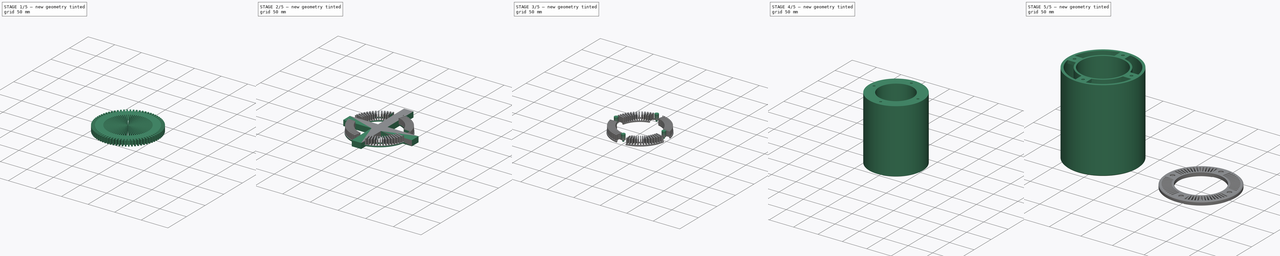
[diagram: build sequence overview — one tinted view per stage of 5, left to right]
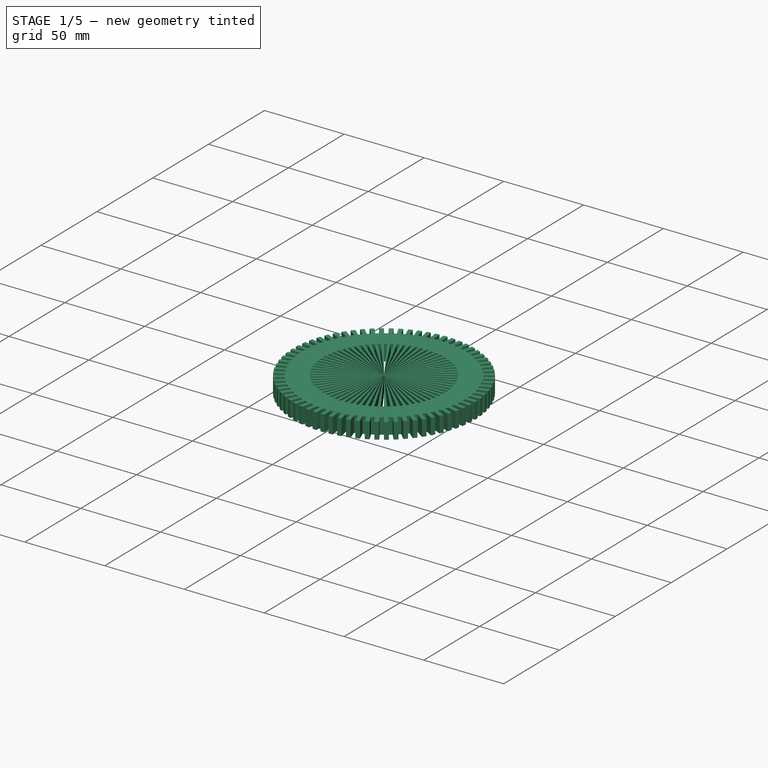
[diagram: stage 1 of 5 — iso view after this stage's code; geometry added in this stage tinted green]
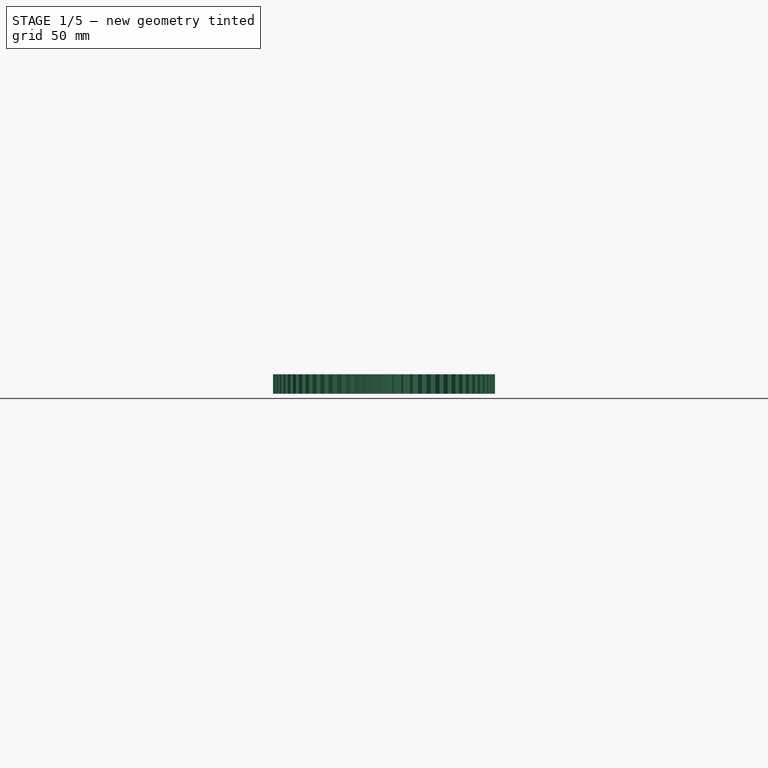
[diagram: stage 1 of 5 — front view after this stage's code; geometry added in this stage tinted green]
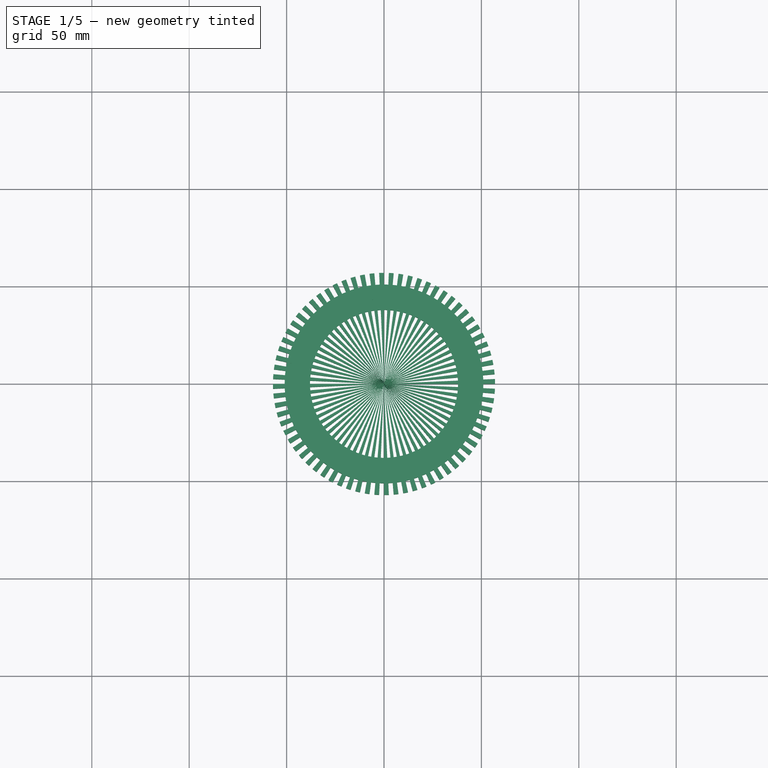
[diagram: stage 1 of 5 — top view after this stage's code; geometry added in this stage tinted green]
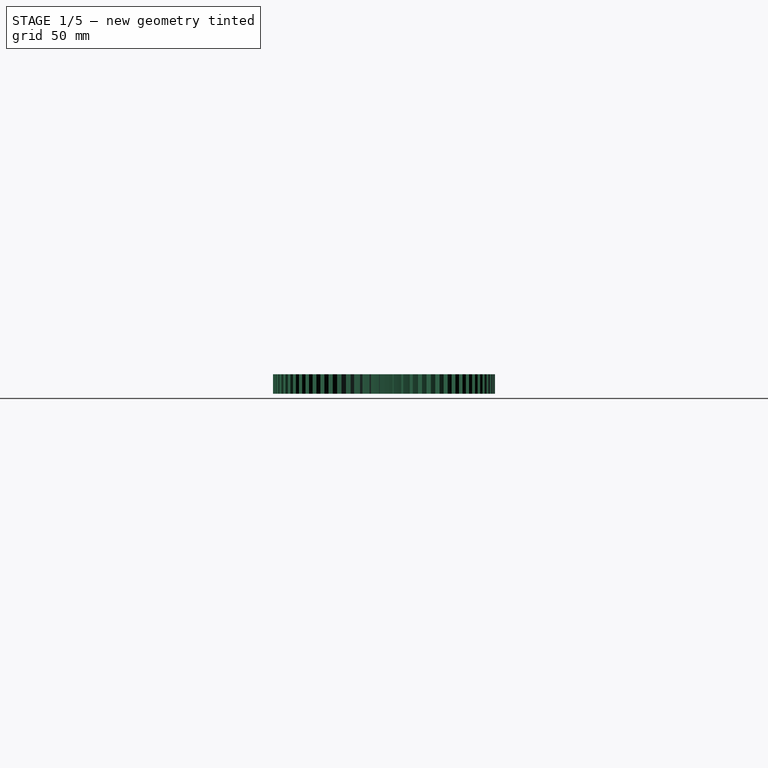
[diagram: stage 1 of 5 — right view after this stage's code; geometry added in this stage tinted green]
FCSTD DOCUMENT  (FreeCAD 0.19R24291 (Git))
Label: air-filer-extra
License: Other
LicenseURL: GPL3
objects: Part::Cylinder×24, Part::Cut×12, Part::Feature×12, Part::MultiFuse×9, Part::Box×4, Sketcher::SketchObject×3, PartDesign::Pad×2, PartDesign::Body×2, Part::Chamfer×2, PartDesign::Pocket×1, Part::MultiCommon×1
note: 75 computed .brp shape members not serialized (recipe doc carries the construction recipe); baked Part::Feature solids carry a one-line shape summary decoded from their .brp

FEATURE [Part::Cylinder] Cylinder016
  Angle = 2.5
  AttacherType = Attacher::AttachEngine3D
  Height = 10
  Radius = 57
FEATURE [Part::Cylinder] Cylinder017
  Angle = 2.5
  AttacherType = Attacher::AttachEngine3D
  Height = 10
  Placement = pos=(0,0,0) rot=(0,0,1;6.19592rad)
  Radius = 57
FEATURE [Part::Cylinder] Cylinder018
  Angle = 2.5
  AttacherType = Attacher::AttachEngine3D
  Height = 10
  Placement = pos=(0,0,0) rot=(0,0,1;6.10865rad)
  Radius = 57
FEATURE [Part::Cylinder] Cylinder019
  Angle = 2.5
  AttacherType = Attacher::AttachEngine3D
  Height = 10
  Placement = pos=(0,0,0) rot=(0,0,1;6.02139rad)
  Radius = 57
FEATURE [Part::Cylinder] Cylinder020
  Angle = 2.5
  AttacherType = Attacher::AttachEngine3D
  Height = 10
  Placement = pos=(0,0,0) rot=(0,0,1;5.93412rad)
  Radius = 57
FEATURE [Part::Cylinder] Cylinder021
  Angle = 2.5
  AttacherType = Attacher::AttachEngine3D
  Height = 10
  Placement = pos=(0,0,0) rot=(0,0,1;5.84685rad)
  Radius = 57
FEATURE [Part::MultiFuse] Fusion007
  Shapes = -> [Cylinder021,Cylinder016,Cylinder017,Cylinder018,Cylinder019,Cylinder020]
FEATURE [Part::Feature] Fusion007001
  Placement = pos=(0,0,0) rot=(0,0,1;5.75959rad)
  shape: bbox 50.56 x 46.69 x 10 mm, 30 faces, 6 solids (baked)
FEATURE [Part::Feature] Fusion007002
  Placement = pos=(0,0,0) rot=(0,0,-1;1.0472rad)
  shape: bbox 30.63 x 56.78 x 10 mm, 30 faces, 6 solids (baked)
FEATURE [Part::Feature] Fusion007003
  Placement = pos=(0,0,0) rot=(0,0,1;4.71239rad)
  shape: bbox 26.58 x 57 x 10 mm, 30 faces, 6 solids (baked)
FEATURE [Part::Feature] Fusion007004
  Placement = pos=(0,0,0) rot=(0,0,1;4.18879rad)
  shape: bbox 46.69 x 50.56 x 10 mm, 30 faces, 6 solids (baked)
FEATURE [Part::Feature] Fusion007005
  Placement = pos=(0,0,0) rot=(0,0,-1;2.61799rad)
  shape: bbox 56.78 x 30.63 x 10 mm, 30 faces, 6 solids (baked)
FEATURE [Part::Feature] Fusion007006
  Placement = pos=(0,0,0) rot=(0,0,-1;3.14159rad)
  shape: bbox 57 x 26.58 x 10 mm, 30 faces, 6 solids (baked)
FEATURE [Part::Feature] Fusion007007
  Placement = pos=(0,0,0) rot=(0,0,-1;3.66519rad)
  shape: bbox 50.56 x 46.69 x 10 mm, 30 faces, 6 solids (baked)
FEATURE [Part::Feature] Fusion007008
  Placement = pos=(0,0,0) rot=(0,0,-1;4.18879rad)
  shape: bbox 30.63 x 56.78 x 10 mm, 30 faces, 6 solids (baked)
FEATURE [Part::Feature] Fusion007009
  Placement = pos=(0,0,0) rot=(0,0,-1;4.71239rad)
  shape: bbox 26.58 x 57 x 10 mm, 30 faces, 6 solids (baked)
FEATURE [Part::Feature] Fusion007010
  Placement = pos=(0,0,0) rot=(0,0,-1;5.23599rad)
  shape: bbox 46.69 x 50.56 x 10 mm, 30 faces, 6 solids (baked)
FEATURE [Part::Feature] Fusion007011
  Placement = pos=(0,0,0) rot=(0,0,-1;5.75959rad)
  shape: bbox 56.78 x 30.63 x 10 mm, 30 faces, 6 solids (baked)
FEATURE [Part::MultiFuse] Fusion007012
  Shapes = -> [Fusion007011,Fusion007,Fusion007001,Fusion007002,Fusion007003,Fusion007004,Fusion007005,Fusion007006,Fusion007007,Fusion007008,Fusion007009,Fusion007010]
FEATURE [Part::Cylinder] Cylinder022
  Angle = 360
  AttacherType = Attacher::AttachEngine3D
  Height = 10
  Radius = 38
FEATURE [Part::Cylinder] Cylinder023
  Angle = 360
  AttacherType = Attacher::AttachEngine3D
  Height = 10
  Radius = 51
FEATURE [Part::Cut] Cut009
  Base = -> Cylinder023
  Tool = -> Cylinder022
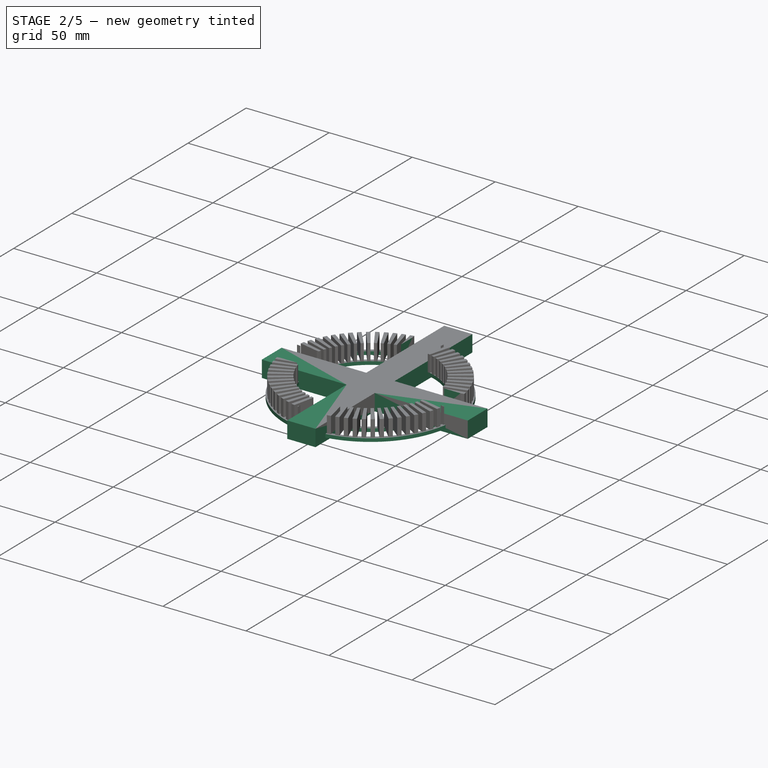
[diagram: stage 2 of 5 — iso view after this stage's code; geometry added in this stage tinted green]
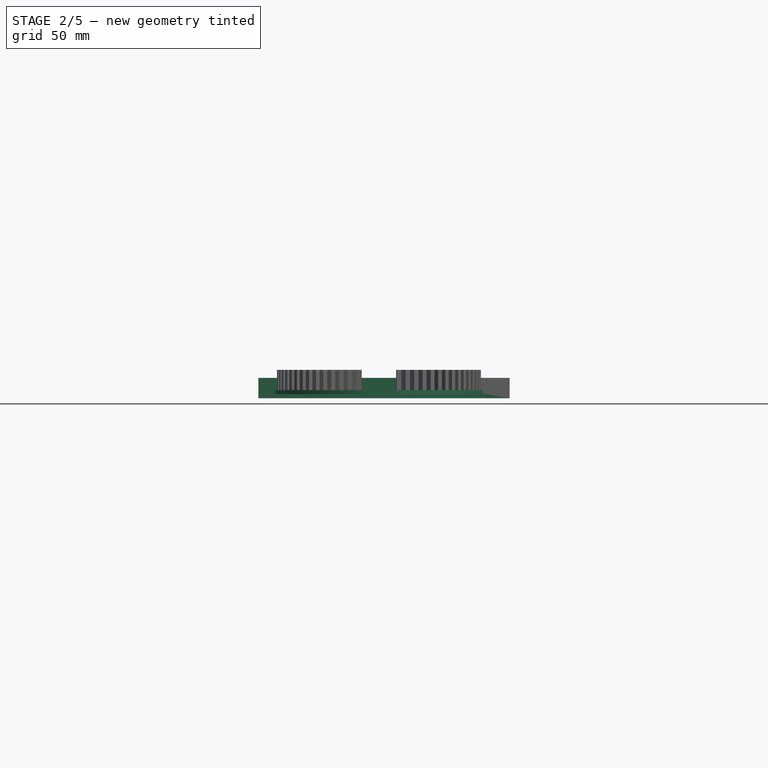
[diagram: stage 2 of 5 — front view after this stage's code; geometry added in this stage tinted green]
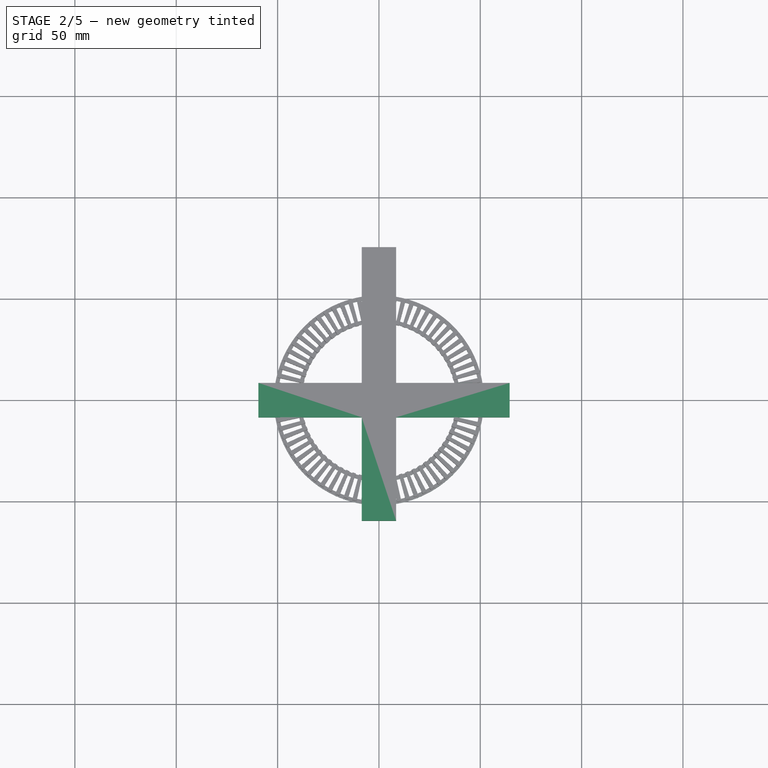
[diagram: stage 2 of 5 — top view after this stage's code; geometry added in this stage tinted green]
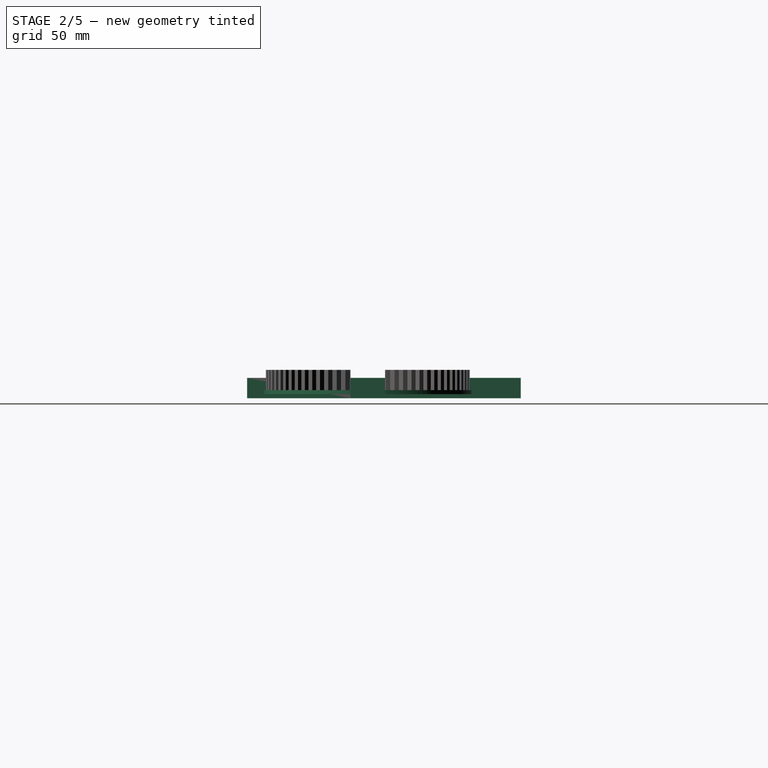
[diagram: stage 2 of 5 — right view after this stage's code; geometry added in this stage tinted green]
FEATURE [Part::Cylinder] Cylinder012
  Angle = 360
  AttacherType = Attacher::AttachEngine3D
  Height = 2
  Placement = pos=(0,0,-2) rot=(0,0,1;0rad)
  Radius = 51.8
FEATURE [Part::Cylinder] Cylinder013
  Angle = 360
  AttacherType = Attacher::AttachEngine3D
  Height = 2
  Placement = pos=(0,0,-2) rot=(0,0,1;0rad)
  Radius = 49.8
FEATURE [Part::Cut] Cut006
  Base = -> Cylinder012
  Tool = -> Cylinder013
FEATURE [Part::Cylinder] Cylinder014
  Angle = 360
  AttacherType = Attacher::AttachEngine3D
  Height = 2
  Placement = pos=(0,0,-2) rot=(0,0,1;0rad)
  Radius = 38.2
FEATURE [Part::Cylinder] Cylinder015
  Angle = 360
  AttacherType = Attacher::AttachEngine3D
  Height = 2
  Placement = pos=(0,0,-2) rot=(0,0,1;0rad)
  Radius = 40.2
FEATURE [Part::Cut] Cut007
  Base = -> Cylinder015
  Tool = -> Cylinder014
FEATURE [Part::Box] Box002  label="Cube002"
  AttacherType = Attacher::AttachEngine3D
  Height = 10
  Length = 17
  Placement = pos=(-8.5,-59.5,0) rot=(0,0,1;0rad)
  Width = 135
FEATURE [Part::Box] Box003  label="Cube003"
  AttacherType = Attacher::AttachEngine3D
  Height = 10
  Length = 124
  Placement = pos=(-59.5,-8.5,0) rot=(0,0,1;0rad)
  Width = 17
FEATURE [Part::MultiFuse] Fusion005
  Placement = pos=(0,0,-4) rot=(0,0,1;0rad)
  Shapes = -> [Box002,Box003]
FEATURE [Part::MultiCommon] Common
  Shapes = -> [Fusion007012,Cut009]
FEATURE [Part::Feature] Fusion005001
  shape: bbox 124 x 135 x 10 mm, 22 faces (baked)
FEATURE [Part::Cut] Cut010
  Base = -> Common
  Tool = -> Fusion005001
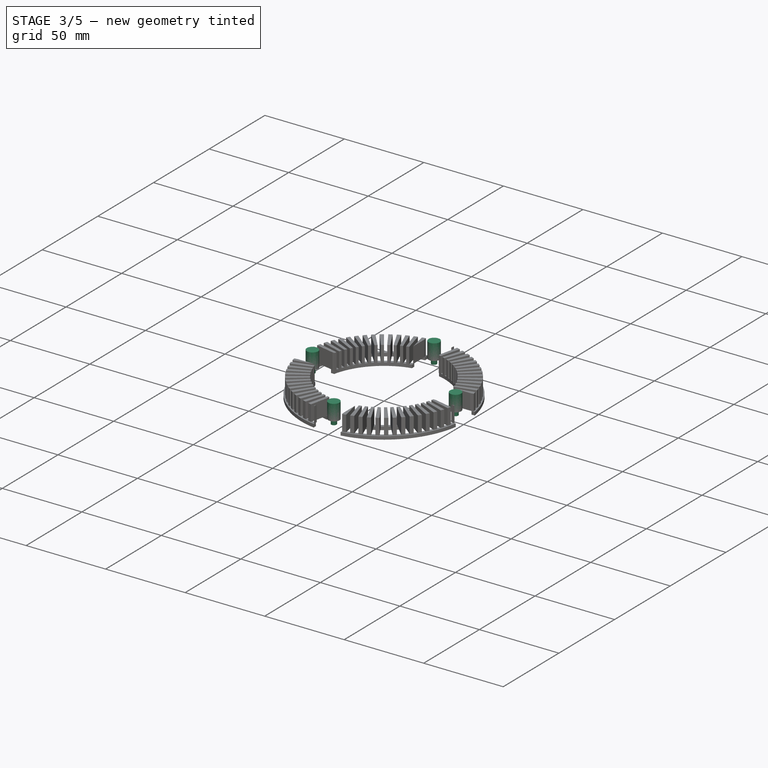
[diagram: stage 3 of 5 — iso view after this stage's code; geometry added in this stage tinted green]
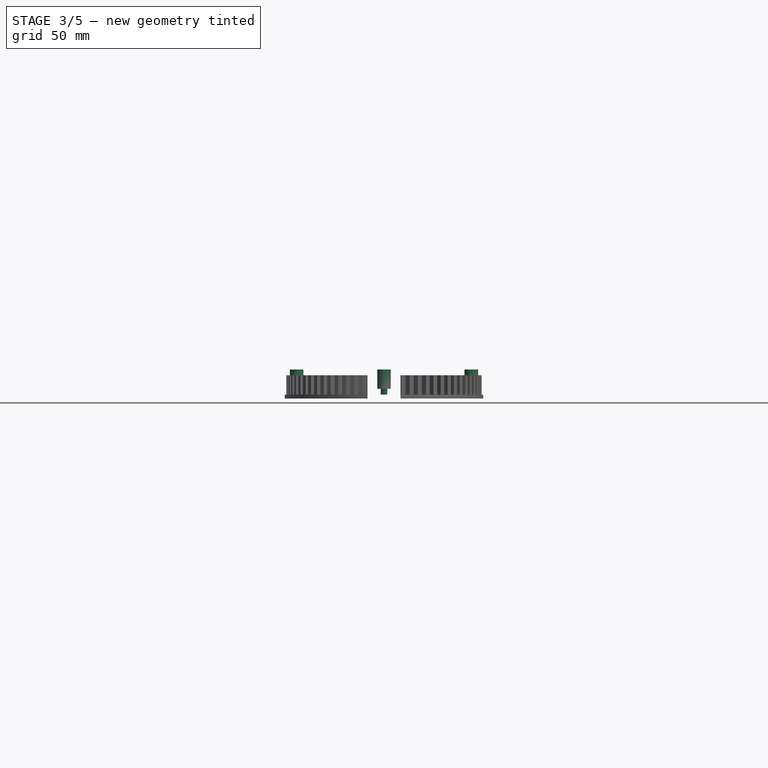
[diagram: stage 3 of 5 — front view after this stage's code; geometry added in this stage tinted green]
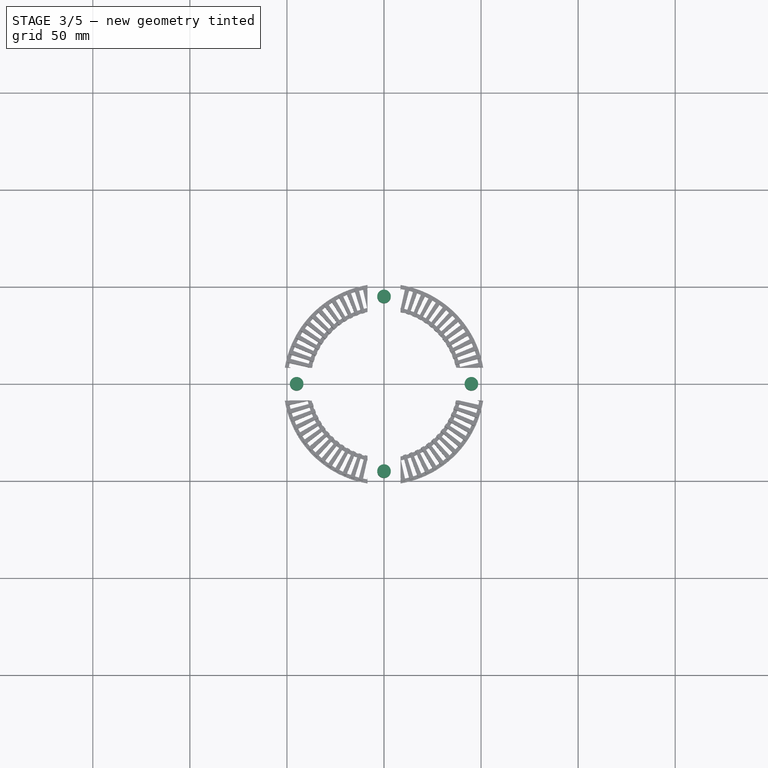
[diagram: stage 3 of 5 — top view after this stage's code; geometry added in this stage tinted green]
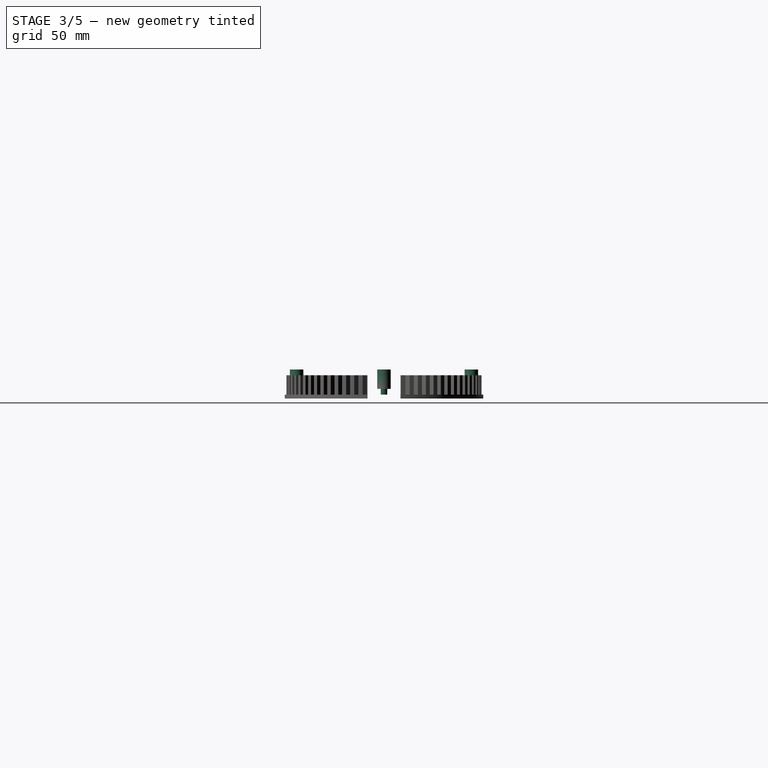
[diagram: stage 3 of 5 — right view after this stage's code; geometry added in this stage tinted green]
FEATURE [Part::Cylinder] Cylinder004
  Angle = 360
  AttacherType = Attacher::AttachEngine3D
  Height = 10
  Placement = pos=(0,45,0) rot=(0,0,1;0rad)
  Radius = 1.65
FEATURE [Part::Cylinder] Cylinder005
  Angle = 360
  AttacherType = Attacher::AttachEngine3D
  Height = 10
  Placement = pos=(0,-45,0) rot=(0,0,1;0rad)
  Radius = 1.65
FEATURE [Part::Cylinder] Cylinder006
  Angle = 360
  AttacherType = Attacher::AttachEngine3D
  Height = 10
  Placement = pos=(-45,0,0) rot=(0,0,1;0rad)
  Radius = 1.65
FEATURE [Part::Cylinder] Cylinder007
  Angle = 360
  AttacherType = Attacher::AttachEngine3D
  Height = 10
  Placement = pos=(45,0,0) rot=(0,0,1;0rad)
  Radius = 1.65
FEATURE [Part::Cylinder] Cylinder008
  Angle = 360
  AttacherType = Attacher::AttachEngine3D
  Height = 10
  Placement = pos=(45,0,0) rot=(0,0,1;0rad)
  Radius = 3.5
FEATURE [Part::Cylinder] Cylinder009
  Angle = 360
  AttacherType = Attacher::AttachEngine3D
  Height = 10
  Placement = pos=(-45,0,0) rot=(0,0,1;0rad)
  Radius = 3.5
FEATURE [Part::Cylinder] Cylinder010
  Angle = 360
  AttacherType = Attacher::AttachEngine3D
  Height = 10
  Placement = pos=(0,-45,0) rot=(0,0,1;0rad)
  Radius = 3.5
FEATURE [Part::Cylinder] Cylinder011
  Angle = 360
  AttacherType = Attacher::AttachEngine3D
  Height = 10
  Placement = pos=(0,45,0) rot=(0,0,1;0rad)
  Radius = 3.5
FEATURE [Part::MultiFuse] Fusion002
  Placement = pos=(0,0,3) rot=(0,0,1;0rad)
  Shapes = -> [Cylinder011,Cylinder008,Cylinder009,Cylinder010]
FEATURE [Part::MultiFuse] Fusion004
  Shapes = -> [Cut007,Cut006]
FEATURE [Part::Cut] Cut008
  Base = -> Fusion004
  Tool = -> Fusion005
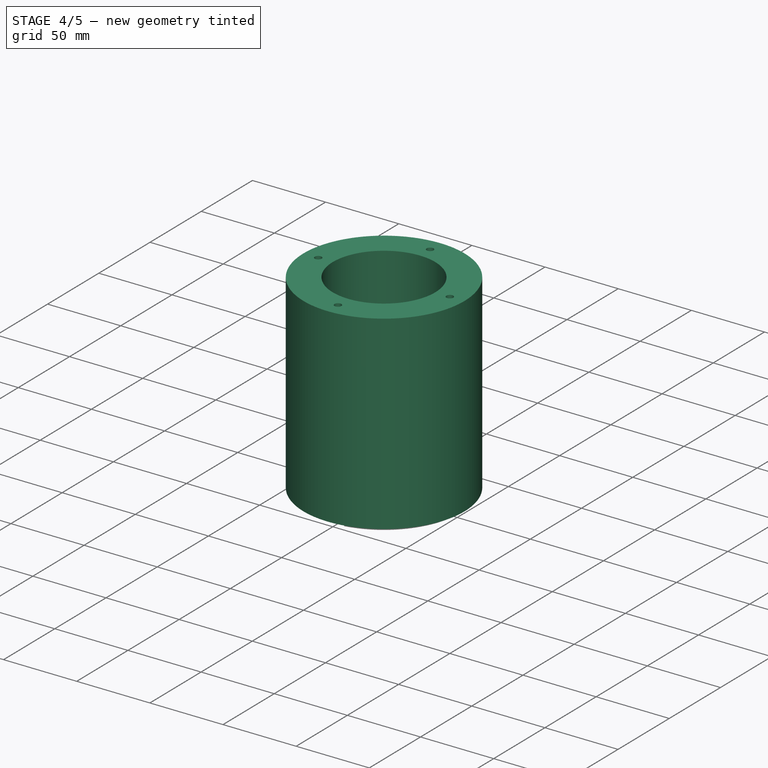
[diagram: stage 4 of 5 — iso view after this stage's code; geometry added in this stage tinted green]
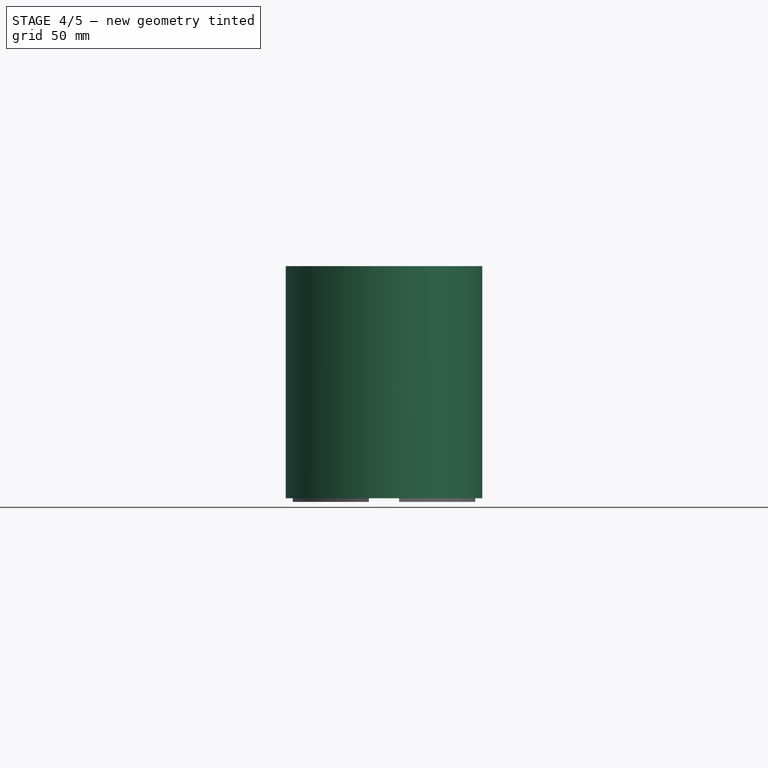
[diagram: stage 4 of 5 — front view after this stage's code; geometry added in this stage tinted green]
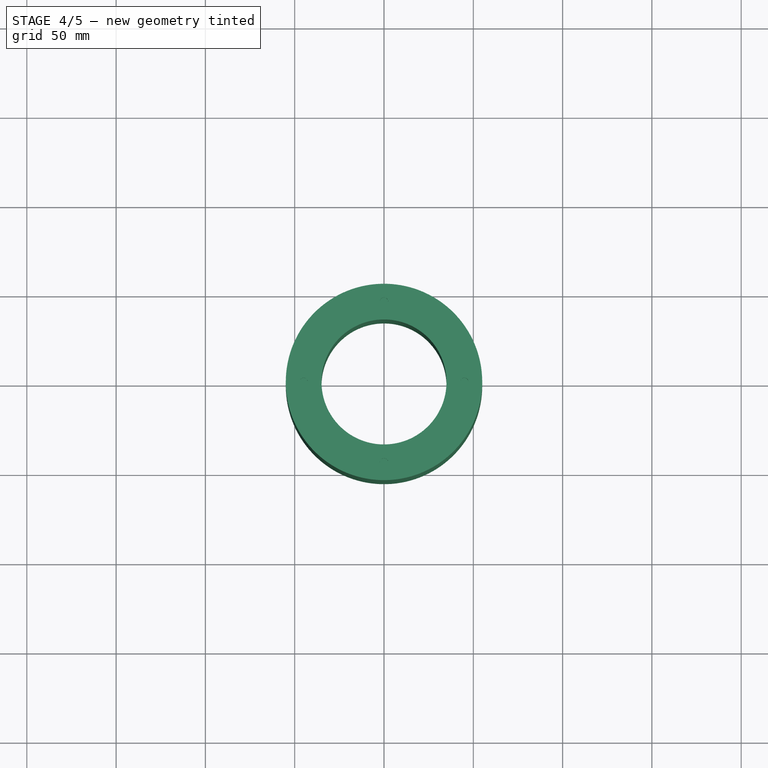
[diagram: stage 4 of 5 — top view after this stage's code; geometry added in this stage tinted green]
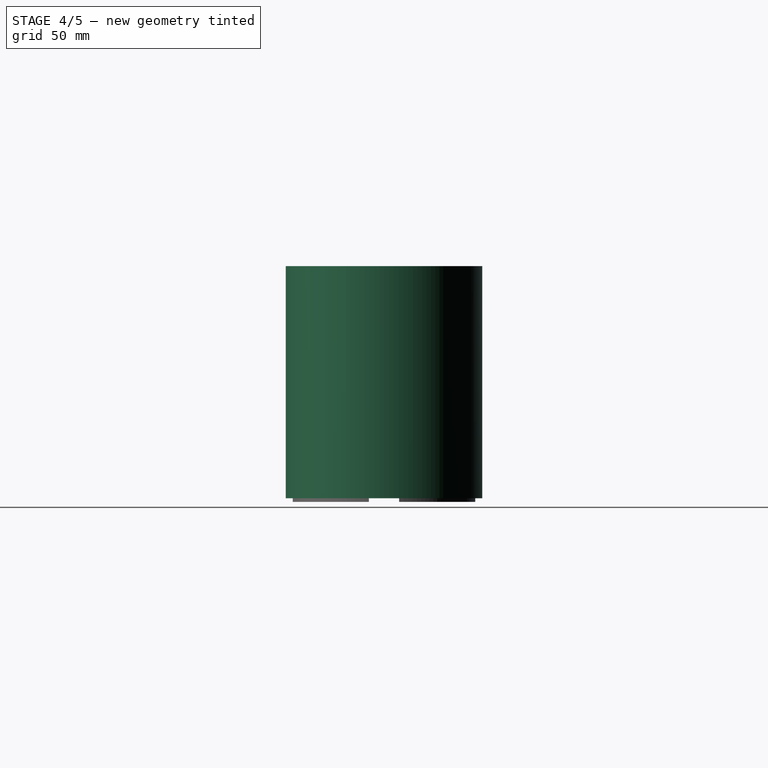
[diagram: stage 4 of 5 — right view after this stage's code; geometry added in this stage tinted green]
FEATURE [Sketcher::SketchObject] Sketch
  FullyConstrained = true
  MapMode = 5
  Support = -> [XY_Plane]
  sketch-geometry (2):
    g0: Circle CenterX=0 CenterY=0 CenterZ=0 NormalX=0 NormalY=0 NormalZ=1 AngleXU=0 Radius=55
    g1: Circle CenterX=0 CenterY=0 CenterZ=0 NormalX=0 NormalY=0 NormalZ=1 AngleXU=0 Radius=35
  constraints (4):
    c: Coincident(g0,g-1)
    c: Coincident(g1,g0)
    c: Radius(g0) = 55
    c: Radius(g1) = 35
FEATURE [PartDesign::Pad] Pad
  Direction = (1,1,1)
  Length = 130
  Length2 = 100
  Profile = -> Sketch
  Type = 0
FEATURE [PartDesign::Body] Body001
  Group = -> [Sketch001,Pad001]
  Origin = -> Origin001
  Placement = pos=(0,0,5) rot=(0,0,1;0rad)
  Tip = -> Pad001
FEATURE [Sketcher::SketchObject] Sketch002
  FullyConstrained = true
  MapMode = 5
  Placement = pos=(0,0,130) rot=(0,0,1;0rad)
  Support = -> [Pad]
  sketch-geometry (4):
    g0: Circle CenterX=-45 CenterY=0 CenterZ=0 NormalX=0 NormalY=0 NormalZ=1 AngleXU=0 Radius=2.35
    g1: Circle CenterX=45 CenterY=0 CenterZ=0 NormalX=0 NormalY=0 NormalZ=1 AngleXU=0 Radius=2.35
    g2: Circle CenterX=0 CenterY=45 CenterZ=0 NormalX=0 NormalY=0 NormalZ=1 AngleXU=0 Radius=2.35
    g3: Circle CenterX=0 CenterY=-45 CenterZ=0 NormalX=0 NormalY=0 NormalZ=1 AngleXU=0 Radius=2.35
  constraints (12):
    c: Radius(g2) = 2.35
    c: Radius(g0) = 2.35
    c: Radius(g3) = 2.35
    c: Radius(g1) = 2.35
    c: DistanceX(g2,g-1) = 0
    c: DistanceX(g3,g-1) = 0
    c: DistanceY(g-1,g0) = 0
    c: DistanceY(g-1,g1) = 0
    c: DistanceX(g0,g-1) = 45
    c: DistanceX(g-1,g1) = 45
    c: DistanceY(g3,g-1) = 45
    c: DistanceY(g-1,g2) = 45
FEATURE [PartDesign::Pocket] Pocket
  BaseFeature = -> Pad
  Length = 5
  Length2 = 100
  Profile = -> Sketch002
  Type = 0
FEATURE [Part::Cylinder] Cylinder002
  Angle = 360
  AttacherType = Attacher::AttachEngine3D
  Height = 5
  Radius = 55
FEATURE [Part::Cylinder] Cylinder003
  Angle = 360
  AttacherType = Attacher::AttachEngine3D
  Height = 5
  Radius = 35
FEATURE [Part::Cut] Cut004
  Base = -> Cylinder002
  Tool = -> Cylinder003
FEATURE [Part::MultiFuse] Fusion001
  Shapes = -> [Cylinder007,Cylinder006,Cylinder005,Cylinder004]
FEATURE [Part::MultiFuse] Fusion003
  Shapes = -> [Fusion002,Fusion001]
FEATURE [Part::Cut] Cut005
  Base = -> Cut004
  Tool = -> Fusion003
FEATURE [Part::MultiFuse] Fusion006
  Shapes = -> [Cut005,Cut008]
FEATURE [Part::Cut] Cut011
  Base = -> Fusion006
  Tool = -> Cut010
FEATURE [Part::Chamfer] Chamfer001
  Base = -> Cut011
  Edges = 1 edges r=1: [Edge1]
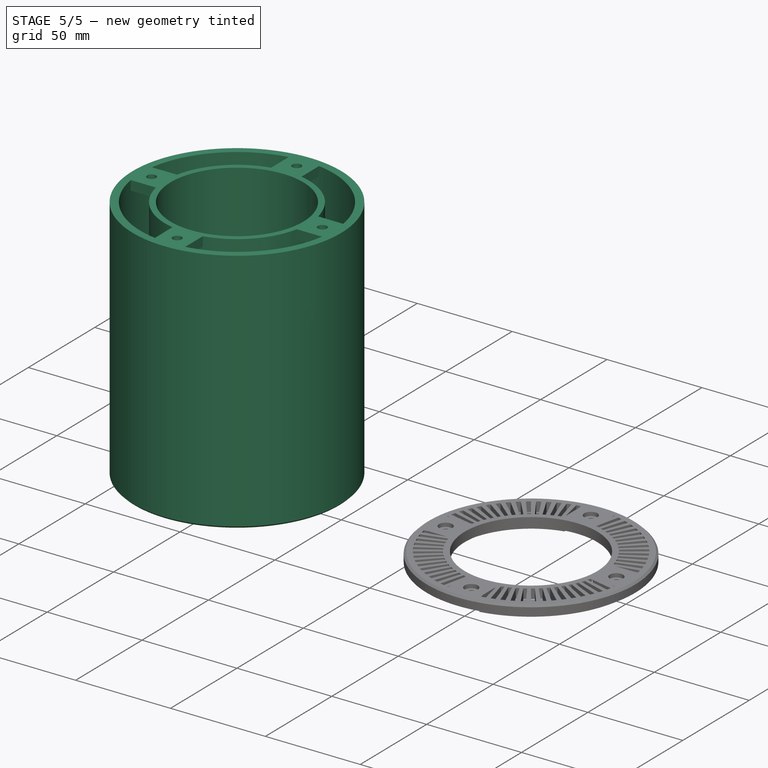
[diagram: stage 5 of 5 — iso view after this stage's code; geometry added in this stage tinted green]
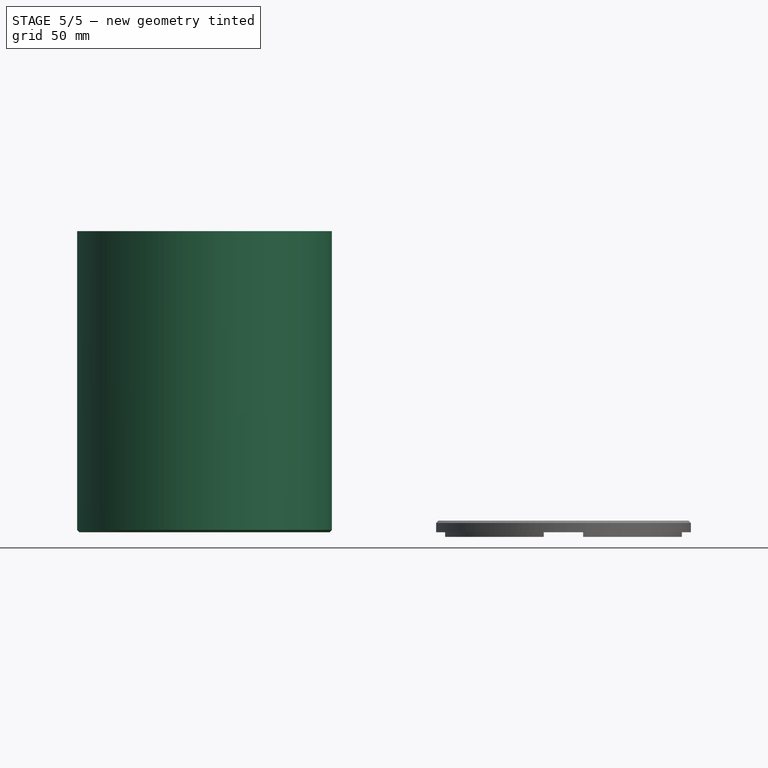
[diagram: stage 5 of 5 — front view after this stage's code; geometry added in this stage tinted green]
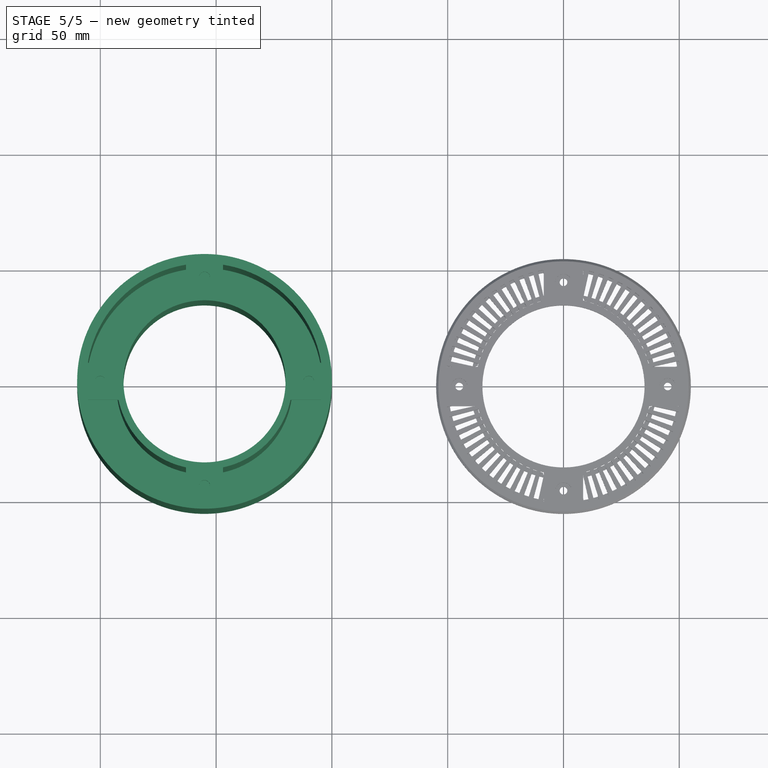
[diagram: stage 5 of 5 — top view after this stage's code; geometry added in this stage tinted green]
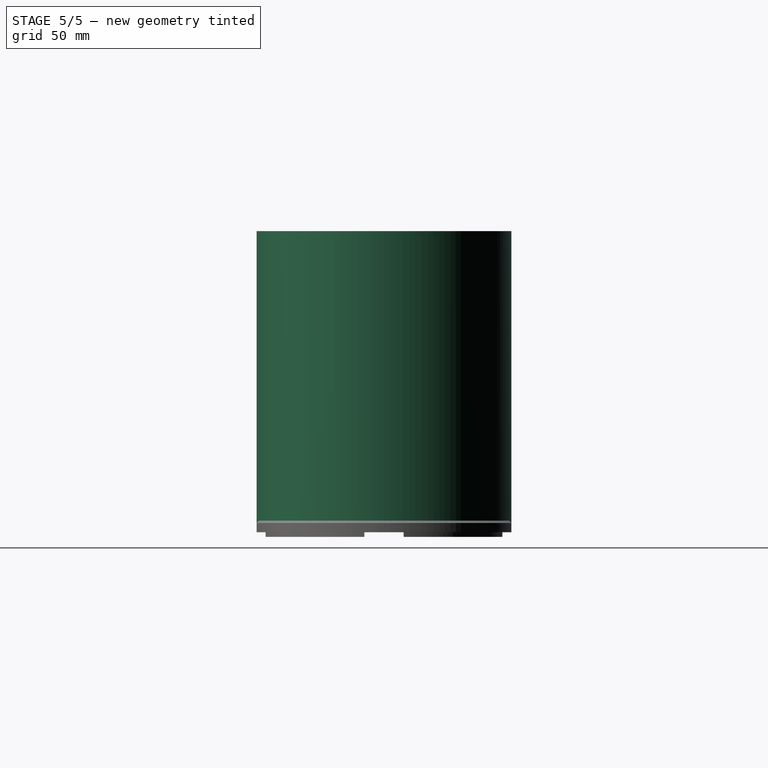
[diagram: stage 5 of 5 — right view after this stage's code; geometry added in this stage tinted green]
FEATURE [Sketcher::SketchObject] Sketch001
  FullyConstrained = true
  MapMode = 5
  Support = -> [XY_Plane001]
  sketch-geometry (2):
    g0: Circle CenterX=0 CenterY=0 CenterZ=0 NormalX=0 NormalY=0 NormalZ=1 AngleXU=0 Radius=51
    g1: Circle CenterX=0 CenterY=0 CenterZ=0 NormalX=0 NormalY=0 NormalZ=1 AngleXU=0 Radius=38
  constraints (4):
    c: Coincident(g0,g-1)
    c: Coincident(g1,g0)
    c: Radius(g0) = 51
    c: Radius(g1) = 38
FEATURE [PartDesign::Pad] Pad001
  Direction = (1,1,1)
  Length = 120
  Length2 = 100
  Profile = -> Sketch001
  Type = 0
FEATURE [PartDesign::Body] Body
  Group = -> [Sketch,Pad,Sketch002,Pocket]
  Origin = -> Origin
  Tip = -> Pocket
FEATURE [Part::Cylinder] Cylinder
  Angle = 360
  AttacherType = Attacher::AttachEngine3D
  Height = 10
  Radius = 51
FEATURE [Part::Cylinder] Cylinder001
  Angle = 360
  AttacherType = Attacher::AttachEngine3D
  Height = 10
  Radius = 38
FEATURE [Part::Cut] Cut001
  Base = -> Cylinder
  Tool = -> Cylinder001
FEATURE [Part::Box] Box  label="Cube"
  AttacherType = Attacher::AttachEngine3D
  Height = 10
  Length = 16
  Placement = pos=(-8,-56,0) rot=(0,0,1;0rad)
  Width = 108
FEATURE [Part::Box] Box001  label="Cube001"
  AttacherType = Attacher::AttachEngine3D
  Height = 10
  Length = 128
  Placement = pos=(-56,-8,0) rot=(0,0,1;0rad)
  Width = 16
FEATURE [Part::MultiFuse] Fusion
  Shapes = -> [Box001,Box]
FEATURE [Part::Cut] Cut002
  Base = -> Cut001
  Placement = pos=(0,0,123) rot=(0,0,1;0rad)
  Tool = -> Fusion
FEATURE [Part::Cut] Cut
  Base = -> Body
  Tool = -> Body001
FEATURE [Part::Cut] Cut003
  Base = -> Cut
  Placement = pos=(-155,0,0) rot=(0,0,1;0rad)
  Tool = -> Cut002
FEATURE [Part::Chamfer] Chamfer
  Base = -> Cut003
  Edges = 2 edges r=1: [Edge2,Edge4]
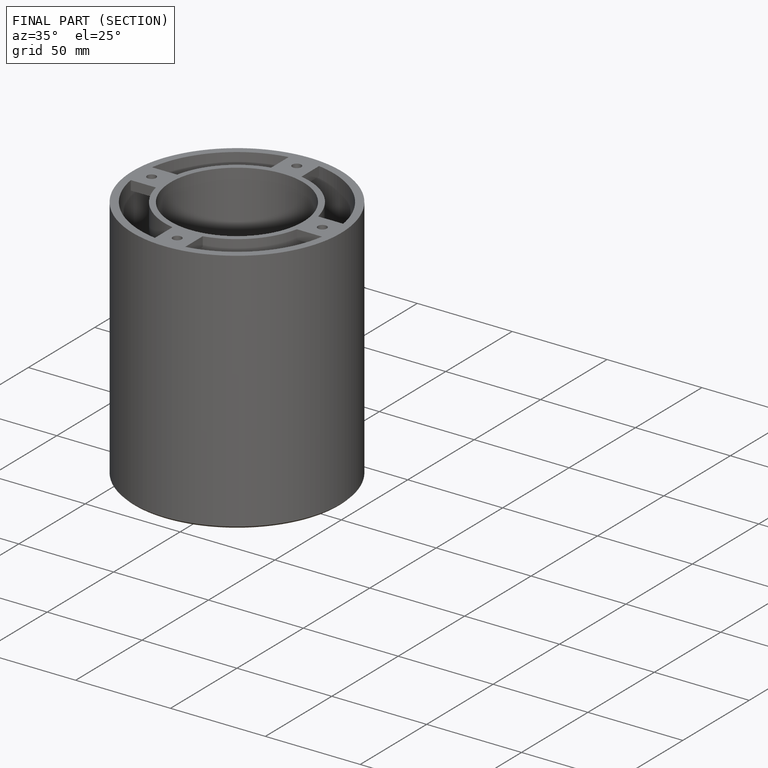
[diagram: finished part — half-section view (interior)]
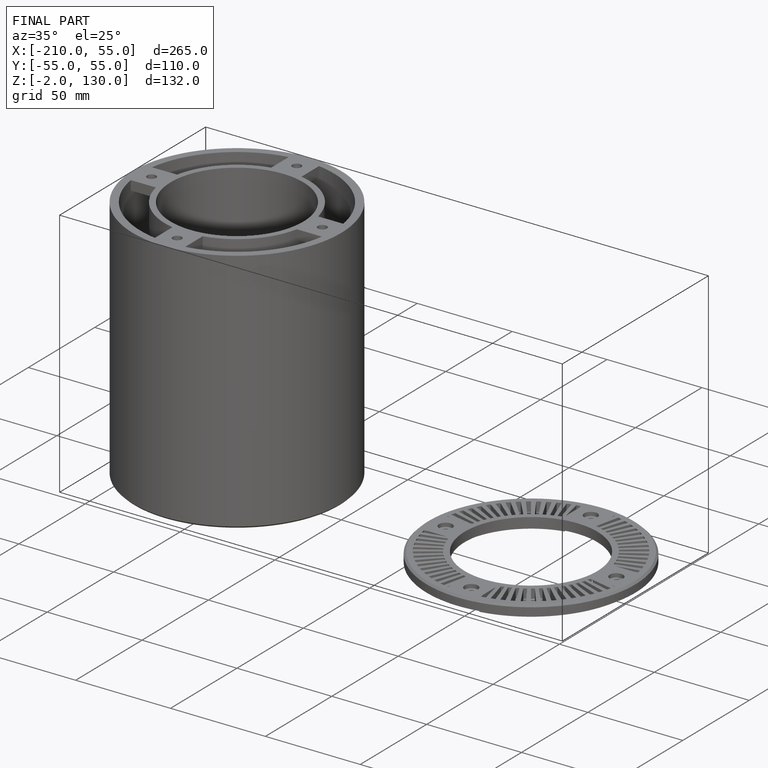
[diagram: finished part — iso view with bounding-box wireframe]
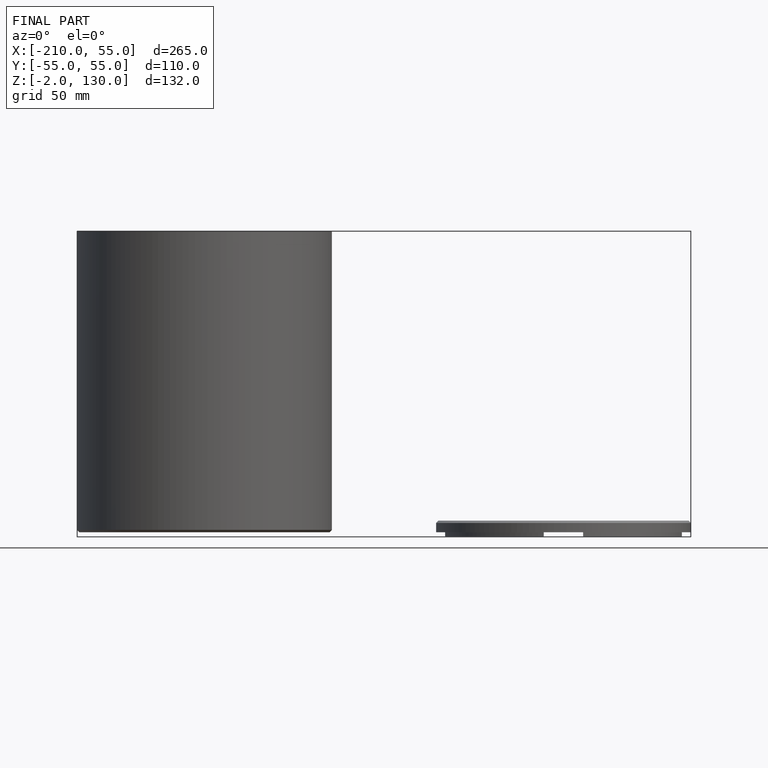
[diagram: finished part — front view with bounding-box wireframe]
